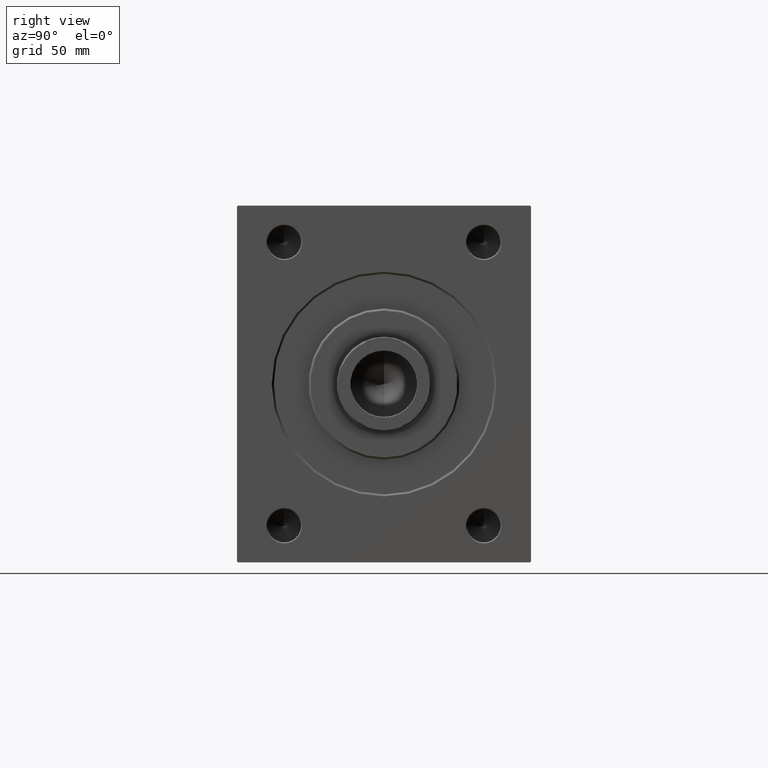
[diagram: clean part render]
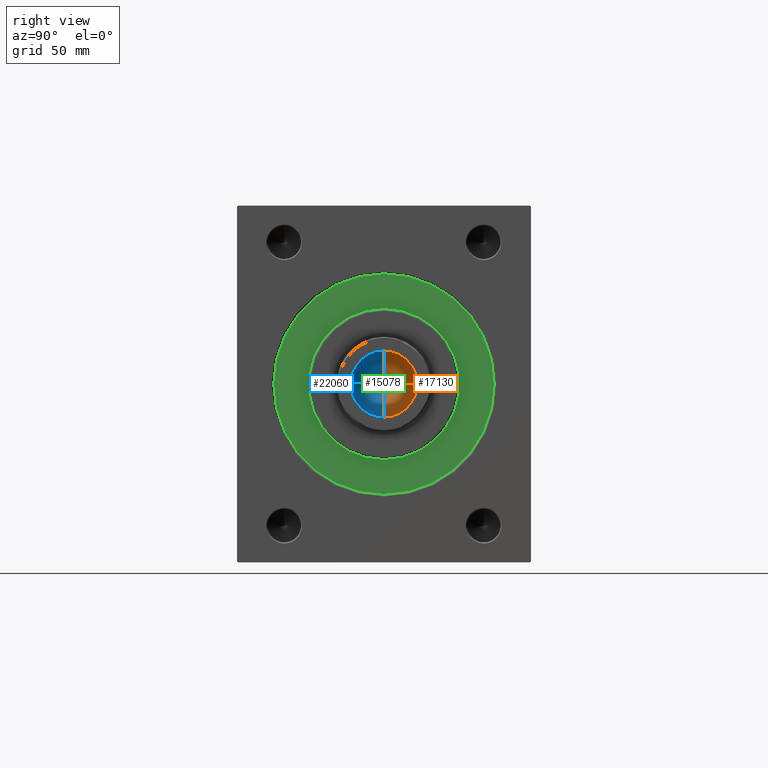
[diagram: same view with three faces highlighted in distinct colors, each labeled with its STEP entity id]
A machine part, right view with three faces highlighted in distinct colors.
Their STEP definitions:

[orange] entity #17130 — the highlighted conical surface has half-angle 59 deg.
#124 = DIRECTION ( 'NONE',  ( 1.000000000000000000, 0.000000000000000000, 0.000000000000000000 ) ) ;
#358 = AXIS2_PLACEMENT_3D ( 'NONE', #31802, #10880, #11336 ) ;
#1182 = CARTESIAN_POINT ( 'NONE',  ( 15.74999999999999289, 0.000000000000000000, 206.0000000000000000 ) ) ;
#3088 = LINE ( 'NONE', #38104, #17849 ) ;
#9606 = AXIS2_PLACEMENT_3D ( 'NONE', #21229, #34444, #124 ) ;
#10333 = FACE_OUTER_BOUND ( 'NONE', #39552, .T. ) ;
#10880 = DIRECTION ( 'NONE',  ( -0.000000000000000000, -0.000000000000000000, 1.000000000000000000 ) ) ;
#11336 = DIRECTION ( 'NONE',  ( 1.000000000000000000, 0.000000000000000000, 0.000000000000000000 ) ) ;
#15615 = ORIENTED_EDGE ( 'NONE', *, *, #21778, .T. ) ;
#16855 = CONICAL_SURFACE ( 'NONE', #9606, 15.74999999999999289, 1.029744258676653867 ) ;
#17130 = ADVANCED_FACE ( 'NONE', ( #10333 ), #16855, .F. ) ;
#17754 = CIRCLE ( 'NONE', #358, 15.74999999999999289 ) ;
#17849 = VECTOR ( 'NONE', #24638, 1000.000000000000000 ) ;
#19095 = DIRECTION ( 'NONE',  ( 0.8571673007021120005, 0.000000000000000000, 0.5150380749100547106 ) ) ;
#21229 = CARTESIAN_POINT ( 'NONE',  ( 0.000000000000000000, 0.000000000000000000, 206.0000000000000000 ) ) ;
#21778 = EDGE_CURVE ( 'NONE', #42914, #38028, #17754, .T. ) ;
#24638 = DIRECTION ( 'NONE',  ( -0.8571673007021120005, 1.049727191138618326E-16, 0.5150380749100547106 ) ) ;
#24926 = EDGE_CURVE ( 'NONE', #33442, #42914, #43247, .T. ) ;
#25334 = CARTESIAN_POINT ( 'NONE',  ( -1.041392428426254229E-14, 0.000000000000000000, 196.5364452503159214 ) ) ;
#27911 = VECTOR ( 'NONE', #19095, 1000.000000000000000 ) ;
#29034 = ORIENTED_EDGE ( 'NONE', *, *, #24926, .T. ) ;
#29046 = EDGE_CURVE ( 'NONE', #33442, #38028, #3088, .T. ) ;
#31385 = CARTESIAN_POINT ( 'NONE',  ( 15.74999999999999289, 0.000000000000000000, 206.0000000000000000 ) ) ;
#31802 = CARTESIAN_POINT ( 'NONE',  ( 0.000000000000000000, 0.000000000000000000, 206.0000000000000000 ) ) ;
#33085 = CARTESIAN_POINT ( 'NONE',  ( -15.74999999999999289, 1.928818708657080556E-15, 206.0000000000000000 ) ) ;
#33442 = VERTEX_POINT ( 'NONE', #25334 ) ;
#34444 = DIRECTION ( 'NONE',  ( -0.000000000000000000, -0.000000000000000000, 1.000000000000000000 ) ) ;
#38028 = VERTEX_POINT ( 'NONE', #33085 ) ;
#38104 = CARTESIAN_POINT ( 'NONE',  ( -15.74999999999999289, 1.928818708657080556E-15, 206.0000000000000000 ) ) ;
#38933 = ORIENTED_EDGE ( 'NONE', *, *, #29046, .F. ) ;
#39552 = EDGE_LOOP ( 'NONE', ( #38933, #29034, #15615 ) ) ;
#42914 = VERTEX_POINT ( 'NONE', #31385 ) ;
#43247 = LINE ( 'NONE', #1182, #27911 ) ;

[blue] entity #22060 — the highlighted conical surface has half-angle 59 deg.
#1182 = CARTESIAN_POINT ( 'NONE',  ( 15.74999999999999289, 0.000000000000000000, 206.0000000000000000 ) ) ;
#3088 = LINE ( 'NONE', #38104, #17849 ) ;
#9048 = ORIENTED_EDGE ( 'NONE', *, *, #29046, .T. ) ;
#11524 = CIRCLE ( 'NONE', #24548, 15.74999999999999289 ) ;
#17423 = DIRECTION ( 'NONE',  ( 1.000000000000000000, 0.000000000000000000, 0.000000000000000000 ) ) ;
#17849 = VECTOR ( 'NONE', #24638, 1000.000000000000000 ) ;
#19095 = DIRECTION ( 'NONE',  ( 0.8571673007021120005, 0.000000000000000000, 0.5150380749100547106 ) ) ;
#20376 = CARTESIAN_POINT ( 'NONE',  ( 0.000000000000000000, 0.000000000000000000, 206.0000000000000000 ) ) ;
#20657 = AXIS2_PLACEMENT_3D ( 'NONE', #20376, #40890, #17423 ) ;
#20685 = ORIENTED_EDGE ( 'NONE', *, *, #39849, .T. ) ;
#22060 = ADVANCED_FACE ( 'NONE', ( #44320 ), #43224, .F. ) ;
#22791 = DIRECTION ( 'NONE',  ( 1.000000000000000000, 0.000000000000000000, 0.000000000000000000 ) ) ;
#24548 = AXIS2_PLACEMENT_3D ( 'NONE', #29848, #40779, #22791 ) ;
#24638 = DIRECTION ( 'NONE',  ( -0.8571673007021120005, 1.049727191138618326E-16, 0.5150380749100547106 ) ) ;
#24926 = EDGE_CURVE ( 'NONE', #33442, #42914, #43247, .T. ) ;
#25334 = CARTESIAN_POINT ( 'NONE',  ( -1.041392428426254229E-14, 0.000000000000000000, 196.5364452503159214 ) ) ;
#27911 = VECTOR ( 'NONE', #19095, 1000.000000000000000 ) ;
#28315 = EDGE_LOOP ( 'NONE', ( #42015, #9048, #20685 ) ) ;
#29046 = EDGE_CURVE ( 'NONE', #33442, #38028, #3088, .T. ) ;
#29848 = CARTESIAN_POINT ( 'NONE',  ( 0.000000000000000000, 0.000000000000000000, 206.0000000000000000 ) ) ;
#31385 = CARTESIAN_POINT ( 'NONE',  ( 15.74999999999999289, 0.000000000000000000, 206.0000000000000000 ) ) ;
#33085 = CARTESIAN_POINT ( 'NONE',  ( -15.74999999999999289, 1.928818708657080556E-15, 206.0000000000000000 ) ) ;
#33442 = VERTEX_POINT ( 'NONE', #25334 ) ;
#38028 = VERTEX_POINT ( 'NONE', #33085 ) ;
#38104 = CARTESIAN_POINT ( 'NONE',  ( -15.74999999999999289, 1.928818708657080556E-15, 206.0000000000000000 ) ) ;
#39849 = EDGE_CURVE ( 'NONE', #38028, #42914, #11524, .T. ) ;
#40779 = DIRECTION ( 'NONE',  ( -0.000000000000000000, -0.000000000000000000, 1.000000000000000000 ) ) ;
#40890 = DIRECTION ( 'NONE',  ( -0.000000000000000000, -0.000000000000000000, 1.000000000000000000 ) ) ;
#42015 = ORIENTED_EDGE ( 'NONE', *, *, #24926, .F. ) ;
#42914 = VERTEX_POINT ( 'NONE', #31385 ) ;
#43224 = CONICAL_SURFACE ( 'NONE', #20657, 15.74999999999999289, 1.029744258676653867 ) ;
#43247 = LINE ( 'NONE', #1182, #27911 ) ;
#44320 = FACE_OUTER_BOUND ( 'NONE', #28315, .T. ) ;

[green] entity #15078 — the highlighted planar face has unit normal (-1, 0, 0).
#455 = EDGE_CURVE ( 'NONE', #20703, #42982, #33302, .T. ) ;
#459 = DIRECTION ( 'NONE',  ( 1.000000000000000000, -0.000000000000000000, 0.000000000000000000 ) ) ;
#848 = VERTEX_POINT ( 'NONE', #32524 ) ;
#1513 = EDGE_LOOP ( 'NONE', ( #2432, #9854 ) ) ;
#1877 = DIRECTION ( 'NONE',  ( -1.000000000000000000, 0.000000000000000000, 0.000000000000000000 ) ) ;
#2014 = DIRECTION ( 'NONE',  ( 0.000000000000000000, 0.000000000000000000, -1.000000000000000000 ) ) ;
#2432 = ORIENTED_EDGE ( 'NONE', *, *, #12320, .F. ) ;
#3372 = FACE_BOUND ( 'NONE', #33603, .T. ) ;
#4153 = CARTESIAN_POINT ( 'NONE',  ( 0.000000000000000000, 0.000000000000000000, -52.50000000000000000 ) ) ;
#6289 = DIRECTION ( 'NONE',  ( -1.000000000000000000, 0.000000000000000000, 0.000000000000000000 ) ) ;
#9854 = ORIENTED_EDGE ( 'NONE', *, *, #17732, .F. ) ;
#9977 = ORIENTED_EDGE ( 'NONE', *, *, #23380, .F. ) ;
#10622 = DIRECTION ( 'NONE',  ( 0.000000000000000000, 0.000000000000000000, 1.000000000000000000 ) ) ;
#10890 = DIRECTION ( 'NONE',  ( 0.000000000000000000, 0.000000000000000000, -1.000000000000000000 ) ) ;
#11207 = CIRCLE ( 'NONE', #18432, 36.00000000000000000 ) ;
#12320 = EDGE_CURVE ( 'NONE', #29547, #848, #43812, .T. ) ;
#13338 = ORIENTED_EDGE ( 'NONE', *, *, #455, .F. ) ;
#15078 = ADVANCED_FACE ( 'NONE', ( #3372, #40898 ), #34728, .F. ) ;
#15473 = DIRECTION ( 'NONE',  ( 0.000000000000000000, 0.000000000000000000, 1.000000000000000000 ) ) ;
#15484 = CIRCLE ( 'NONE', #38763, 52.50000000000000000 ) ;
#16754 = CARTESIAN_POINT ( 'NONE',  ( 0.000000000000000000, 0.000000000000000000, 0.000000000000000000 ) ) ;
#17405 = AXIS2_PLACEMENT_3D ( 'NONE', #38215, #459, #10890 ) ;
#17732 = EDGE_CURVE ( 'NONE', #848, #29547, #15484, .T. ) ;
#18432 = AXIS2_PLACEMENT_3D ( 'NONE', #33140, #22887, #2014 ) ;
#20131 = DIRECTION ( 'NONE',  ( 0.000000000000000000, 0.000000000000000000, 1.000000000000000000 ) ) ;
#20703 = VERTEX_POINT ( 'NONE', #35957 ) ;
#21586 = CARTESIAN_POINT ( 'NONE',  ( 0.000000000000000000, 4.408728476930470856E-15, -36.00000000000000000 ) ) ;
#22887 = DIRECTION ( 'NONE',  ( 1.000000000000000000, -0.000000000000000000, 0.000000000000000000 ) ) ;
#23380 = EDGE_CURVE ( 'NONE', #42982, #20703, #11207, .T. ) ;
#27893 = DIRECTION ( 'NONE',  ( -1.000000000000000000, 0.000000000000000000, 0.000000000000000000 ) ) ;
#29547 = VERTEX_POINT ( 'NONE', #4153 ) ;
#32524 = CARTESIAN_POINT ( 'NONE',  ( 0.000000000000000000, 6.429395695523603956E-15, 52.50000000000000000 ) ) ;
#33140 = CARTESIAN_POINT ( 'NONE',  ( 0.000000000000000000, 0.000000000000000000, 0.000000000000000000 ) ) ;
#33302 = CIRCLE ( 'NONE', #17405, 36.00000000000000000 ) ;
#33603 = EDGE_LOOP ( 'NONE', ( #13338, #9977 ) ) ;
#34728 = PLANE ( 'NONE',  #44613 ) ;
#35957 = CARTESIAN_POINT ( 'NONE',  ( 0.000000000000000000, 0.000000000000000000, 36.00000000000000000 ) ) ;
#36425 = CARTESIAN_POINT ( 'NONE',  ( 0.000000000000000000, 0.000000000000000000, 0.000000000000000000 ) ) ;
#38215 = CARTESIAN_POINT ( 'NONE',  ( 0.000000000000000000, 0.000000000000000000, 0.000000000000000000 ) ) ;
#38763 = AXIS2_PLACEMENT_3D ( 'NONE', #36425, #1877, #15473 ) ;
#40898 = FACE_OUTER_BOUND ( 'NONE', #1513, .T. ) ;
#40899 = AXIS2_PLACEMENT_3D ( 'NONE', #44294, #6289, #20131 ) ;
#42982 = VERTEX_POINT ( 'NONE', #21586 ) ;
#43812 = CIRCLE ( 'NONE', #40899, 52.50000000000000000 ) ;
#44294 = CARTESIAN_POINT ( 'NONE',  ( 0.000000000000000000, 0.000000000000000000, 0.000000000000000000 ) ) ;
#44613 = AXIS2_PLACEMENT_3D ( 'NONE', #16754, #27893, #10622 ) ;